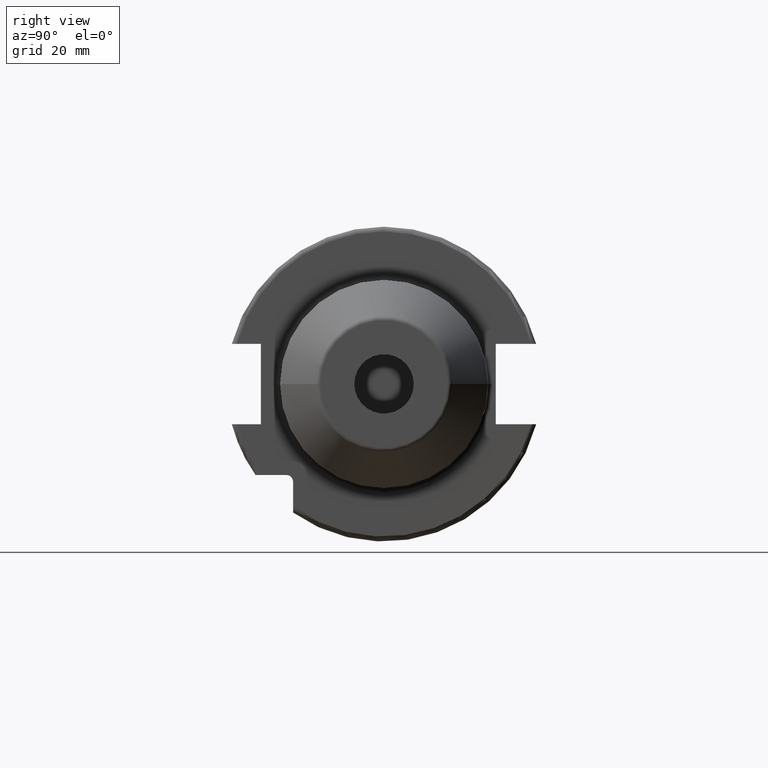
[diagram: clean part render]
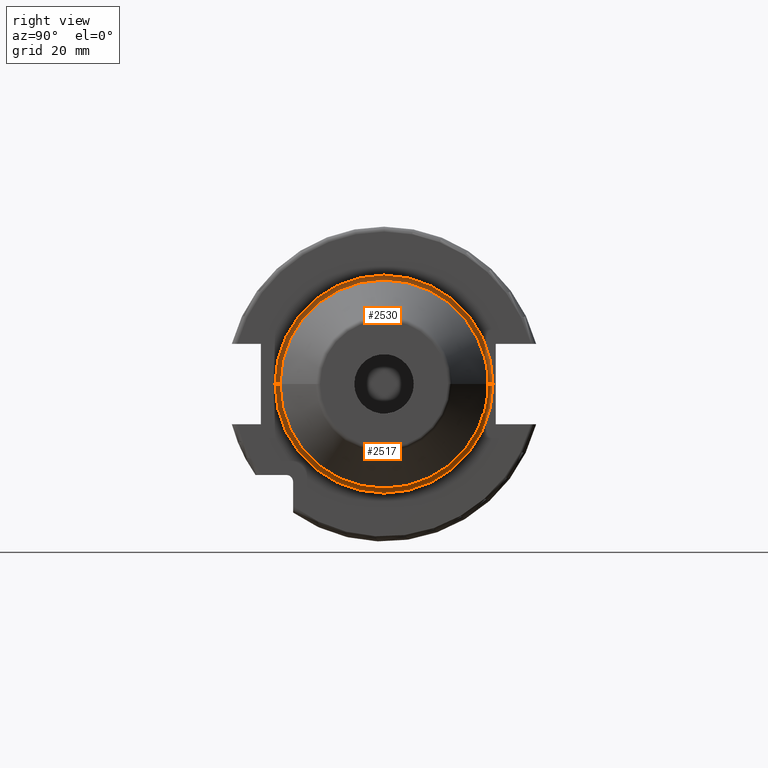
[diagram: same view with one multi-face feature highlighted, each face labeled with its STEP entity id]
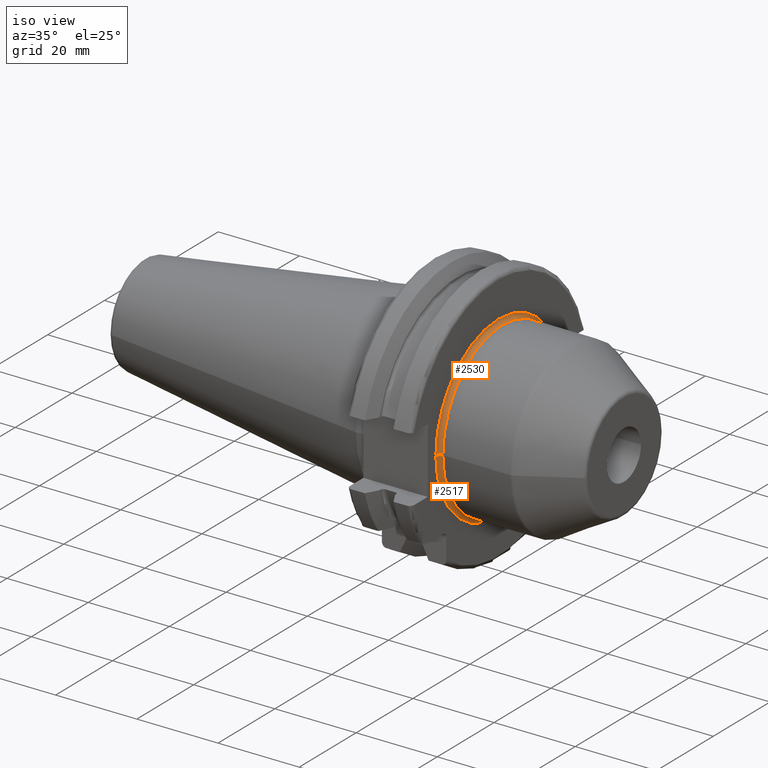
[diagram: same view with one multi-face feature highlighted, each face labeled with its STEP entity id]
A machine part, right view. The highlighted faces form ONE feature: a constant-radius fillet chain: 2 tangent blend faces with common blend radius 1 mm. The faces share edges in the B-rep.
A second angle (iso view) of the same feature is appended — it is thin or edge-on in the first view.
Their STEP definitions:
[1] entity #2517 (Torus):
#158=CARTESIAN_POINT('',(1.905E1,0.E0,0.E0));
#159=DIRECTION('',(1.E0,0.E0,0.E0));
#160=DIRECTION('',(0.E0,-1.E0,0.E0));
#161=AXIS2_PLACEMENT_3D('',#158,#159,#160);
#898=CARTESIAN_POINT('',(2.005E1,-2.2E1,5.051514762044E-14));
#899=DIRECTION('',(0.E0,0.E0,-1.E0));
#900=DIRECTION('',(-1.E0,9.592326932761E-14,0.E0));
#901=AXIS2_PLACEMENT_3D('',#898,#899,#900);
#903=CARTESIAN_POINT('',(2.005E1,2.2E1,-5.373479439186E-14));
#904=DIRECTION('',(0.E0,0.E0,1.E0));
#905=DIRECTION('',(-1.E0,-8.881784197001E-14,0.E0));
#906=AXIS2_PLACEMENT_3D('',#903,#904,#905);
#972=CARTESIAN_POINT('',(2.005E1,0.E0,0.E0));
#973=DIRECTION('',(1.E0,0.E0,0.E0));
#974=DIRECTION('',(0.E0,-1.E0,0.E0));
#975=AXIS2_PLACEMENT_3D('',#972,#973,#974);
#1561=CARTESIAN_POINT('',(1.905E1,-2.2E1,0.E0));
#1562=CARTESIAN_POINT('',(1.905E1,2.2E1,0.E0));
#1563=VERTEX_POINT('',#1561);
#1564=VERTEX_POINT('',#1562);
#1565=CARTESIAN_POINT('',(2.005E1,-2.1E1,0.E0));
#1566=CARTESIAN_POINT('',(2.005E1,2.1E1,0.E0));
#1567=VERTEX_POINT('',#1565);
#1568=VERTEX_POINT('',#1566);
#2503=CARTESIAN_POINT('',(2.005E1,0.E0,0.E0));
#2504=DIRECTION('',(1.E0,0.E0,0.E0));
#2505=DIRECTION('',(0.E0,-9.999731921857E-1,7.322220282676E-3));
#2506=AXIS2_PLACEMENT_3D('',#2503,#2504,#2505);
#2507=TOROIDAL_SURFACE('',#2506,2.2E1,1.E0);
#2508=ORIENTED_EDGE('',*,*,#1796,.F.);
#2510=ORIENTED_EDGE('',*,*,#2509,.T.);
#2512=ORIENTED_EDGE('',*,*,#2511,.T.);
#2514=ORIENTED_EDGE('',*,*,#2513,.F.);
#2515=EDGE_LOOP('',(#2508,#2510,#2512,#2514));
#2516=FACE_OUTER_BOUND('',#2515,.F.);
#2517=ADVANCED_FACE('',(#2516),#2507,.F.);
#162=CIRCLE('',#161,2.2E1);
#902=CIRCLE('',#901,1.E0);
#907=CIRCLE('',#906,1.E0);
#976=CIRCLE('',#975,2.1E1);
#1796=EDGE_CURVE('',#1563,#1564,#162,.T.);
#2509=EDGE_CURVE('',#1563,#1567,#902,.T.);
#2511=EDGE_CURVE('',#1567,#1568,#976,.T.);
#2513=EDGE_CURVE('',#1564,#1568,#907,.T.);
[2] entity #2530 (Torus):
#163=CARTESIAN_POINT('',(1.905E1,0.E0,0.E0));
#164=DIRECTION('',(1.E0,0.E0,0.E0));
#165=DIRECTION('',(0.E0,1.E0,0.E0));
#166=AXIS2_PLACEMENT_3D('',#163,#164,#165);
#898=CARTESIAN_POINT('',(2.005E1,-2.2E1,5.051514762044E-14));
#899=DIRECTION('',(0.E0,0.E0,-1.E0));
#900=DIRECTION('',(-1.E0,9.592326932761E-14,0.E0));
#901=AXIS2_PLACEMENT_3D('',#898,#899,#900);
#903=CARTESIAN_POINT('',(2.005E1,2.2E1,-5.373479439186E-14));
#904=DIRECTION('',(0.E0,0.E0,1.E0));
#905=DIRECTION('',(-1.E0,-8.881784197001E-14,0.E0));
#906=AXIS2_PLACEMENT_3D('',#903,#904,#905);
#934=CARTESIAN_POINT('',(2.005E1,0.E0,0.E0));
#935=DIRECTION('',(1.E0,0.E0,0.E0));
#936=DIRECTION('',(0.E0,1.E0,0.E0));
#937=AXIS2_PLACEMENT_3D('',#934,#935,#936);
#1561=CARTESIAN_POINT('',(1.905E1,-2.2E1,0.E0));
#1562=CARTESIAN_POINT('',(1.905E1,2.2E1,0.E0));
#1563=VERTEX_POINT('',#1561);
#1564=VERTEX_POINT('',#1562);
#1565=CARTESIAN_POINT('',(2.005E1,-2.1E1,0.E0));
#1566=CARTESIAN_POINT('',(2.005E1,2.1E1,0.E0));
#1567=VERTEX_POINT('',#1565);
#1568=VERTEX_POINT('',#1566);
#2518=CARTESIAN_POINT('',(2.005E1,0.E0,0.E0));
#2519=DIRECTION('',(1.E0,0.E0,0.E0));
#2520=DIRECTION('',(0.E0,9.999731921857E-1,-7.322220282677E-3));
#2521=AXIS2_PLACEMENT_3D('',#2518,#2519,#2520);
#2522=TOROIDAL_SURFACE('',#2521,2.2E1,1.E0);
#2523=ORIENTED_EDGE('',*,*,#1798,.F.);
#2524=ORIENTED_EDGE('',*,*,#2513,.T.);
#2526=ORIENTED_EDGE('',*,*,#2525,.T.);
#2527=ORIENTED_EDGE('',*,*,#2509,.F.);
#2528=EDGE_LOOP('',(#2523,#2524,#2526,#2527));
#2529=FACE_OUTER_BOUND('',#2528,.F.);
#2530=ADVANCED_FACE('',(#2529),#2522,.F.);
#167=CIRCLE('',#166,2.2E1);
#902=CIRCLE('',#901,1.E0);
#907=CIRCLE('',#906,1.E0);
#938=CIRCLE('',#937,2.1E1);
#1798=EDGE_CURVE('',#1564,#1563,#167,.T.);
#2509=EDGE_CURVE('',#1563,#1567,#902,.T.);
#2513=EDGE_CURVE('',#1564,#1568,#907,.T.);
#2525=EDGE_CURVE('',#1568,#1567,#938,.T.);